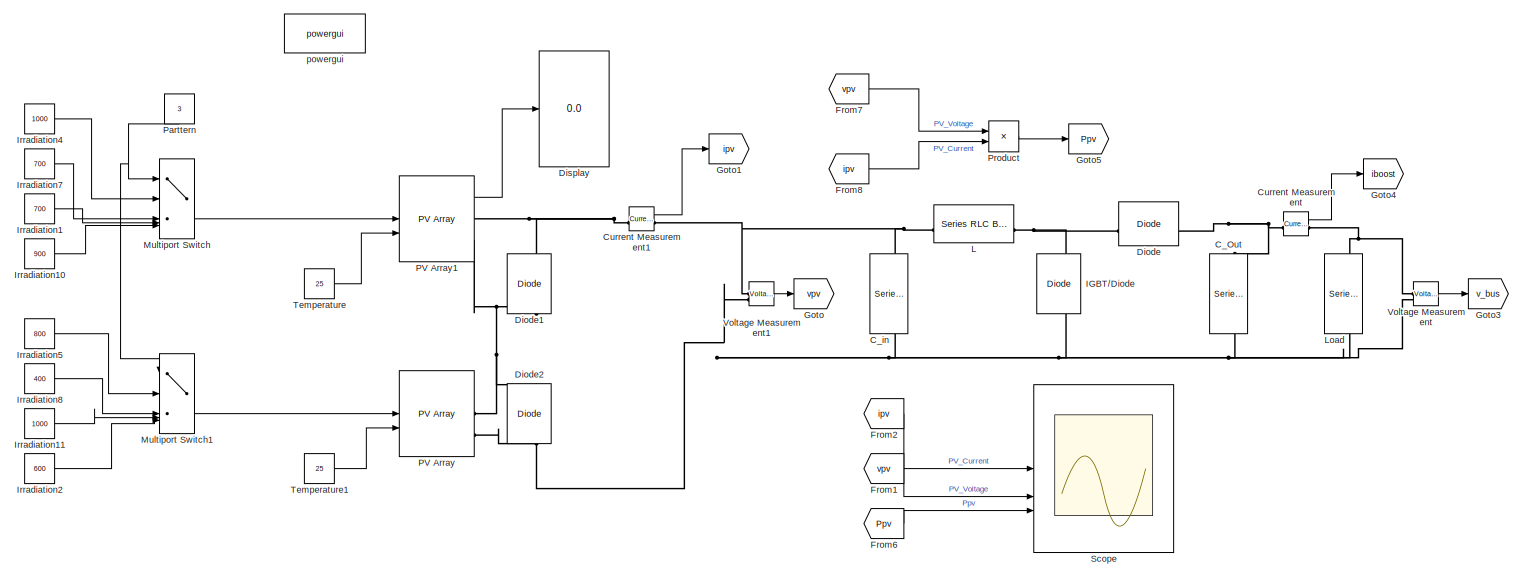
[diagram: root canvas - part 1/3, full width, middle band]
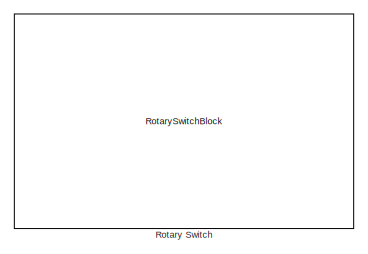
[diagram: root canvas - part 2/3, middle left region]
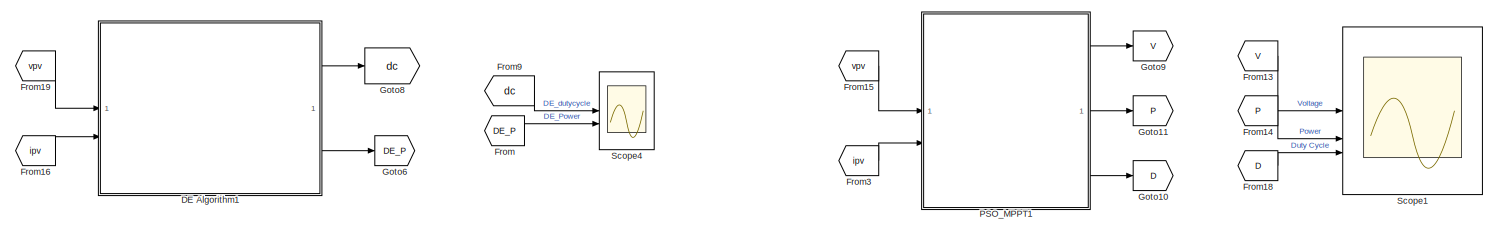
[diagram: root canvas - part 3/3, full width, bottom band]
MODEL slx_ad7030532699
KIND model
CONFIG AbsTol = auto
CONFIG EnableMultiTasking = off
CONFIG FixedStep = auto
CONFIG MaxStep = auto
CONFIG MinStep = auto
CONFIG RelTol = 1e-3
CONFIG SampleTimeConstraint = Unconstrained
CONFIG SolverName = VariableStepAuto
CONFIG StartTime = 0.0
CONFIG StopTime = 1
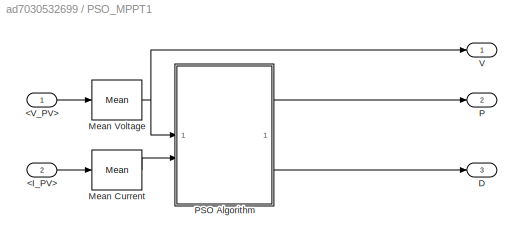
BLOCK [SubSystem]  PSO_MPPT1
BLOCK [Inport]  PSO_MPPT1/<I_PV>
  Port = 2
BLOCK [Inport]  PSO_MPPT1/<V_PV>
  NameLocation = top
BLOCK [Outport]  PSO_MPPT1/D
  Port = 3
  VectorParamsAs1DForOutWhenUnconnected = off
BLOCK [Reference]  PSO_MPPT1/Mean Current  REF=spsMeanLib/Mean
  LibrarySourceBlock = sps_lib/Sensors and Measurements/Mean
  SourceBlock = spsMeanLib/Mean
  SourceType = Mean
BLOCK [Reference]  PSO_MPPT1/Mean Voltage  REF=spsMeanLib/Mean
  LibrarySourceBlock = sps_lib/Sensors and Measurements/Mean
  SourceBlock = spsMeanLib/Mean
  SourceType = Mean
BLOCK [Outport]  PSO_MPPT1/P
  Port = 2
  VectorParamsAs1DForOutWhenUnconnected = off
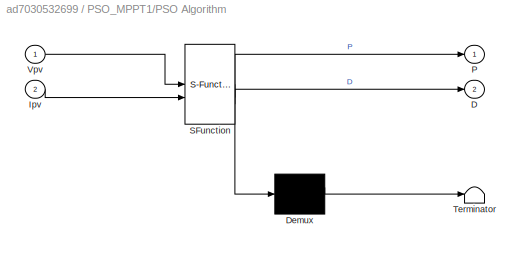
BLOCK [SubSystem]  PSO_MPPT1/PSO Algorithm
  ErrorFcn = Stateflow.Translate.translate
  PermitHierarchicalResolution = ExplicitOnly
  SFBlockType = MATLAB Function
  TreatAsAtomicUnit = on
BLOCK [Demux]  PSO_MPPT1/PSO Algorithm/ Demux 
  Outputs = 1
BLOCK [S-Function]  PSO_MPPT1/PSO Algorithm/ SFunction 
  EnableBusSupport = on
  FunctionName = sf_sfun
  Parameters = c1,c2,n,w
  PortCounts = [2 3]
  SFcnIsStateOwnerBlock = off
  SFunctionDeploymentMode = off
  Tag = Stateflow S-Function 1
BLOCK [Terminator]  PSO_MPPT1/PSO Algorithm/ Terminator 
BLOCK [Outport]  PSO_MPPT1/PSO Algorithm/D
  Port = 2
BLOCK [Inport]  PSO_MPPT1/PSO Algorithm/Ipv
  Port = 2
BLOCK [Outport]  PSO_MPPT1/PSO Algorithm/P
BLOCK [Inport]  PSO_MPPT1/PSO Algorithm/Vpv
BLOCK [Outport]  PSO_MPPT1/V
  VectorParamsAs1DForOutWhenUnconnected = off
BLOCK [Reference] C_Out  REF=spsSeriesRLCBranchLib/Series RLC Branch
  NameLocation = left
  SourceBlock = spsSeriesRLCBranchLib/Series RLC Branch
  SourceType = Series RLC Branch
BLOCK [Reference] C_in  REF=spsSeriesRLCBranchLib/Series RLC Branch
  NameLocation = left
  SourceBlock = spsSeriesRLCBranchLib/Series RLC Branch
  SourceType = Series RLC Branch
BLOCK [Reference] Current Measurement  REF=spsCurrentMeasurementLib/Current Measurement
  SourceBlock = spsCurrentMeasurementLib/Current Measurement
  SourceType = Current Measurement
  UserDataPersistent = on
BLOCK [Reference] Current Measurement1  REF=spsCurrentMeasurementLib/Current Measurement
  SourceBlock = spsCurrentMeasurementLib/Current Measurement
  SourceType = Current Measurement
  UserDataPersistent = on
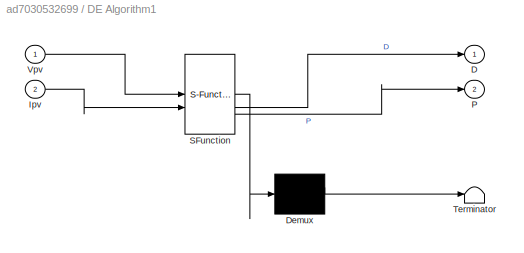
BLOCK [SubSystem] DE Algorithm1
  ErrorFcn = Stateflow.Translate.translate
  PermitHierarchicalResolution = ExplicitOnly
  SFBlockType = MATLAB Function
  TreatAsAtomicUnit = on
BLOCK [Demux] DE Algorithm1/ Demux 
  Outputs = 1
BLOCK [S-Function] DE Algorithm1/ SFunction 
  EnableBusSupport = on
  FunctionName = sf_sfun
  PortCounts = [2 3]
  SFcnIsStateOwnerBlock = off
  SFunctionDeploymentMode = off
  Tag = Stateflow S-Function 4
BLOCK [Terminator] DE Algorithm1/ Terminator 
BLOCK [Outport] DE Algorithm1/D
BLOCK [Inport] DE Algorithm1/Ipv
  Port = 2
BLOCK [Outport] DE Algorithm1/P
  Port = 2
BLOCK [Inport] DE Algorithm1/Vpv
BLOCK [Reference] Diode  REF=spsDiodeLib/Diode
  LibrarySourceBlock = sps_lib/Power Electronics/Diode
  SourceBlock = spsDiodeLib/Diode
  SourceType = Diode
BLOCK [Reference] Diode1  REF=spsDiodeLib/Diode
  LibrarySourceBlock = sps_lib/Power Electronics/Diode
  NameLocation = right
  SourceBlock = spsDiodeLib/Diode
  SourceType = Diode
BLOCK [Reference] Diode2  REF=spsDiodeLib/Diode
  LibrarySourceBlock = sps_lib/Power Electronics/Diode
  NameLocation = right
  SourceBlock = spsDiodeLib/Diode
  SourceType = Diode
BLOCK [Display] Display
  Decimation = 1
BLOCK [From] From
  GotoTag = DE_P
BLOCK [From] From1
  GotoTag = vpv
  TagVisibility = global
BLOCK [From] From13
  GotoTag = V
BLOCK [From] From14
  GotoTag = P
BLOCK [From] From15
  GotoTag = vpv
  TagVisibility = global
BLOCK [From] From16
  GotoTag = ipv
  TagVisibility = global
BLOCK [From] From18
  GotoTag = D
BLOCK [From] From19
  GotoTag = vpv
  TagVisibility = global
BLOCK [From] From2
  GotoTag = ipv
  TagVisibility = global
BLOCK [From] From3
  GotoTag = ipv
  TagVisibility = global
BLOCK [From] From6
  GotoTag = Ppv
  TagVisibility = global
BLOCK [From] From7
  GotoTag = vpv
  TagVisibility = global
BLOCK [From] From8
  GotoTag = ipv
  TagVisibility = global
BLOCK [From] From9
  GotoTag = dc
BLOCK [Goto] Goto
  GotoTag = vpv
  TagVisibility = global
BLOCK [Goto] Goto1
  GotoTag = ipv
  TagVisibility = global
BLOCK [Goto] Goto10
  GotoTag = D
BLOCK [Goto] Goto11
  GotoTag = P
BLOCK [Goto] Goto3
  GotoTag = v_bus
  TagVisibility = global
BLOCK [Goto] Goto4
  GotoTag = iboost
  TagVisibility = global
BLOCK [Goto] Goto5
  GotoTag = Ppv
  TagVisibility = global
BLOCK [Goto] Goto6
  GotoTag = DE_P
BLOCK [Goto] Goto8
  GotoTag = dc
BLOCK [Goto] Goto9
  GotoTag = V
BLOCK [Reference] IGBT//Diode  REF=spsIGBTDiodeLib/IGBT//Diode
  NameLocation = left
  SourceBlock = spsIGBTDiodeLib/IGBT//Diode
  SourceType = IGBT/Diode
BLOCK [Constant] Irradiation1
  Value = 700
BLOCK [Constant] Irradiation10
  Value = 900
BLOCK [Constant] Irradiation11
  Value = 1000
BLOCK [Constant] Irradiation2
  Value = 600
BLOCK [Constant] Irradiation4
  Value = 1000
BLOCK [Constant] Irradiation5
  Value = 800
BLOCK [Constant] Irradiation7
  Value = 700
BLOCK [Constant] Irradiation8
  Value = 400
BLOCK [Reference] L  REF=spsSeriesRLCBranchLib/Series RLC Branch
  SourceBlock = spsSeriesRLCBranchLib/Series RLC Branch
  SourceType = Series RLC Branch
BLOCK [Reference] Load  REF=spsSeriesRLCBranchLib/Series RLC Branch
  NameLocation = left
  SourceBlock = spsSeriesRLCBranchLib/Series RLC Branch
  SourceType = Series RLC Branch
BLOCK [MultiPortSwitch] Multiport Switch
  InputSameDT = off
  Inputs = 4
  SaturateOnIntegerOverflow = off
BLOCK [MultiPortSwitch] Multiport Switch1
  InputSameDT = off
  Inputs = 4
  SaturateOnIntegerOverflow = off
BLOCK [Reference] PV Array  REF=spsPVArrayLib/PV Array
  LibrarySourceBlock = sps_lib/Sources/PV Array
  SourceBlock = spsPVArrayLib/PV Array
  SourceType = PV array
BLOCK [Reference] PV Array1  REF=spsPVArrayLib/PV Array
  LibrarySourceBlock = sps_lib/Sources/PV Array
  SourceBlock = spsPVArrayLib/PV Array
  SourceType = PV array
BLOCK [Constant] Parttern 
  NameLocation = left
  Value = 3
BLOCK [Product] Product
BLOCK [RotarySwitchBlock] Rotary Switch
BLOCK [Scope] Scope
  Floating = off
  NumInputPorts = 3
  ScopeSpecificationString = Simulink.scopes.TimeScopeBlockCfg('CurrentConfiguration', extmgr.ConfigurationSet(extmgr.Configuration('Core','General UI',true,'FigureColor',[1 1 1]),extmgr.Configuration('Core','Source UI',true),extmgr.Configuration('Sources','WiredSimulink',true),extmgr.Configuration('Visuals','Time Domain',true,'PlotType','Line','SerializedDisplays',{struct('MinYLimReal','2.19363','MaxYLimReal','4.50356','YLab...<+3204ch>
BLOCK [Scope] Scope1
  Floating = off
  NumInputPorts = 3
  ScopeSpecificationString = Simulink.scopes.TimeScopeBlockCfg('CurrentConfiguration', extmgr.ConfigurationSet(extmgr.Configuration('Core','General UI',true,'FigureColor',[1 1 1]),extmgr.Configuration('Core','Source UI',true),extmgr.Configuration('Sources','WiredSimulink',true,'DataLoggingVariableName','ScopeData1'),extmgr.Configuration('Visuals','Time Domain',true,'PlotType','Line','SerializedDisplays',{struct('MinYLimReal',...<+3237ch>
BLOCK [Scope] Scope4
  Floating = off
  NumInputPorts = 2
  ScopeSpecificationString = Simulink.scopes.TimeScopeBlockCfg('CurrentConfiguration', extmgr.ConfigurationSet(extmgr.Configuration('Core','General UI',true,'FigureColor',[1 1 1]),extmgr.Configuration('Core','Source UI',true),extmgr.Configuration('Sources','WiredSimulink',true,'DataLoggingVariableName','ScopeData2'),extmgr.Configuration('Visuals','Time Domain',true,'SerializedDisplays',{struct('MinYLimReal','-0.04296','MaxYLi...<+2620ch>
BLOCK [Constant] Temperature
  Value = 25
BLOCK [Constant] Temperature1
  Value = 25
BLOCK [Reference] Voltage Measurement  REF=spsVoltageMeasurementLib/Voltage Measurement
  SourceBlock = spsVoltageMeasurementLib/Voltage Measurement
  SourceType = Voltage Measurement
  UserDataPersistent = on
BLOCK [Reference] Voltage Measurement1  REF=spsVoltageMeasurementLib/Voltage Measurement
  SourceBlock = spsVoltageMeasurementLib/Voltage Measurement
  SourceType = Voltage Measurement
  UserDataPersistent = on
BLOCK [Reference] powergui  REF=sps_lib/powergui
  LibrarySourceBlock = sps_lib/powergui
  Priority = 1
  SourceBlock = sps_lib/powergui
  SourceType = PSB option menu block
LINE  PSO_MPPT1/<I_PV>:1 ->  PSO_MPPT1/Mean Current:1
LINE  PSO_MPPT1/<V_PV>:1 ->  PSO_MPPT1/Mean Voltage:1
LINE  PSO_MPPT1/Mean Current:1 ->  PSO_MPPT1/PSO Algorithm:2
NET  PSO_MPPT1/Mean Voltage:1 ->  PSO_MPPT1/PSO Algorithm:1,  PSO_MPPT1/V:1
LINE  PSO_MPPT1/PSO Algorithm:1 ->  PSO_MPPT1/P:1
LINE  PSO_MPPT1/PSO Algorithm:2 ->  PSO_MPPT1/D:1
LINE  PSO_MPPT1:1 -> Goto9:1
LINE  PSO_MPPT1:2 -> Goto11:1
LINE  PSO_MPPT1:3 -> Goto10:1
LINE Current Measurement1:1 -> Goto1:1
LINE Current Measurement:1 -> Goto4:1
LINE DE Algorithm1:1 -> Goto8:1
LINE DE Algorithm1:2 -> Goto6:1
LINE From13:1 -> Scope1:1
LINE From14:1 -> Scope1:2
LINE From15:1 ->  PSO_MPPT1:1
LINE From16:1 -> DE Algorithm1:2
LINE From18:1 -> Scope1:3
LINE From19:1 -> DE Algorithm1:1
LINE From1:1 -> Scope:2
LINE From2:1 -> Scope:1
LINE From3:1 ->  PSO_MPPT1:2
LINE From6:1 -> Scope:3
LINE From7:1 -> Product:1
LINE From8:1 -> Product:2
LINE From9:1 -> Scope4:1
LINE From:1 -> Scope4:2
LINE Irradiation10:1 -> Multiport Switch:5
LINE Irradiation11:1 -> Multiport Switch1:4
LINE Irradiation1:1 -> Multiport Switch:4
LINE Irradiation2:1 -> Multiport Switch1:5
LINE Irradiation4:1 -> Multiport Switch:2
LINE Irradiation5:1 -> Multiport Switch1:2
LINE Irradiation7:1 -> Multiport Switch:3
LINE Irradiation8:1 -> Multiport Switch1:3
LINE Multiport Switch1:1 -> PV Array:1
LINE Multiport Switch:1 -> PV Array1:1
LINE PV Array1:1 -> Display:1
NET Parttern :1 -> Multiport Switch1:1, Multiport Switch:1
LINE Product:1 -> Goto5:1
LINE Temperature1:1 -> PV Array:2
LINE Temperature:1 -> PV Array1:2
LINE Voltage Measurement1:1 -> Goto:1
LINE Voltage Measurement:1 -> Goto3:1
PNET net1: C_Out:LConn1 -- Current Measurement:LConn1 -- Diode:RConn1
PNET net2: C_Out:RConn1 -- C_in:RConn1 -- Diode2:LConn1 -- IGBT//Diode:RConn1 -- Load:RConn1 -- PV Array:RConn2 -- Voltage Measurement1:LConn2 -- Voltage Measurement:LConn2
PNET net3: C_in:LConn1 -- Current Measurement1:RConn1 -- L:LConn1 -- Voltage Measurement1:LConn1
PNET net4: Current Measurement1:LConn1 -- Diode1:RConn1 -- PV Array1:RConn1
PNET net5: Current Measurement:RConn1 -- Load:LConn1 -- Voltage Measurement:LConn1
PNET net6: Diode1:LConn1 -- Diode2:RConn1 -- PV Array1:RConn2 -- PV Array:RConn1
PNET net7: Diode:LConn1 -- IGBT//Diode:LConn1 -- L:RConn1
note: NET lines group one-source signal fan-out (src -> all destinations, sorted); 1:1 wires keep LINE; PNET lines group multi-terminal physical nets as a canonical sorted terminal list (undirected conserving connections); 2-terminal nets keep the pairwise PLINE form
CHART  PSO_MPPT1/PSO Algorithm states=1 transitions=1
  STATE_LABEL 'eML_blk_kernel()'
  STATE_LABEL "SCRIPT:\nfunction [P,D]= PSO(Vpv, n, w, c1, c2, Ipv)\n    %Initialisation\n    % u = current particle, dcurrent= current duty cycle, pbest= best duty cycle\n    % p = power of positions, dc = duty cycle of positions, v=velocity(delta duty cycle)\n    % counter = time for transient, gbest = best duty cycle\n    \n    coder.extrinsic('randi')\n    P=Vpv*Ipv;\n\n    persistent idx u dcurrent pbest p dc v gbest...<+3608ch>"
CHART DE Algorithm1 states=1 transitions=1
  STATE_LABEL 'eML_blk_kernel()'
  STATE_LABEL "SCRIPT:\nfunction [D,P] = DE_MPPT(Vpv, Ipv)\n    n = 3;\n    \n    % Differential Evolution Parameters\n    F = 0.5;    % Differential weight\n    CR = 0.9;   % Crossover rate\n    \n    % Initialization\n    coder.extrinsic('randi');\n    P = Vpv * Ipv;\n    \n    persistent population fitness best_individual n_particle;\n    \n    % Initialize persistent variables\n    if(isempty(population))\n        n_particl...<+1559ch>"
CHART  states=0 transitions=0
CHART  states=0 transitions=0
